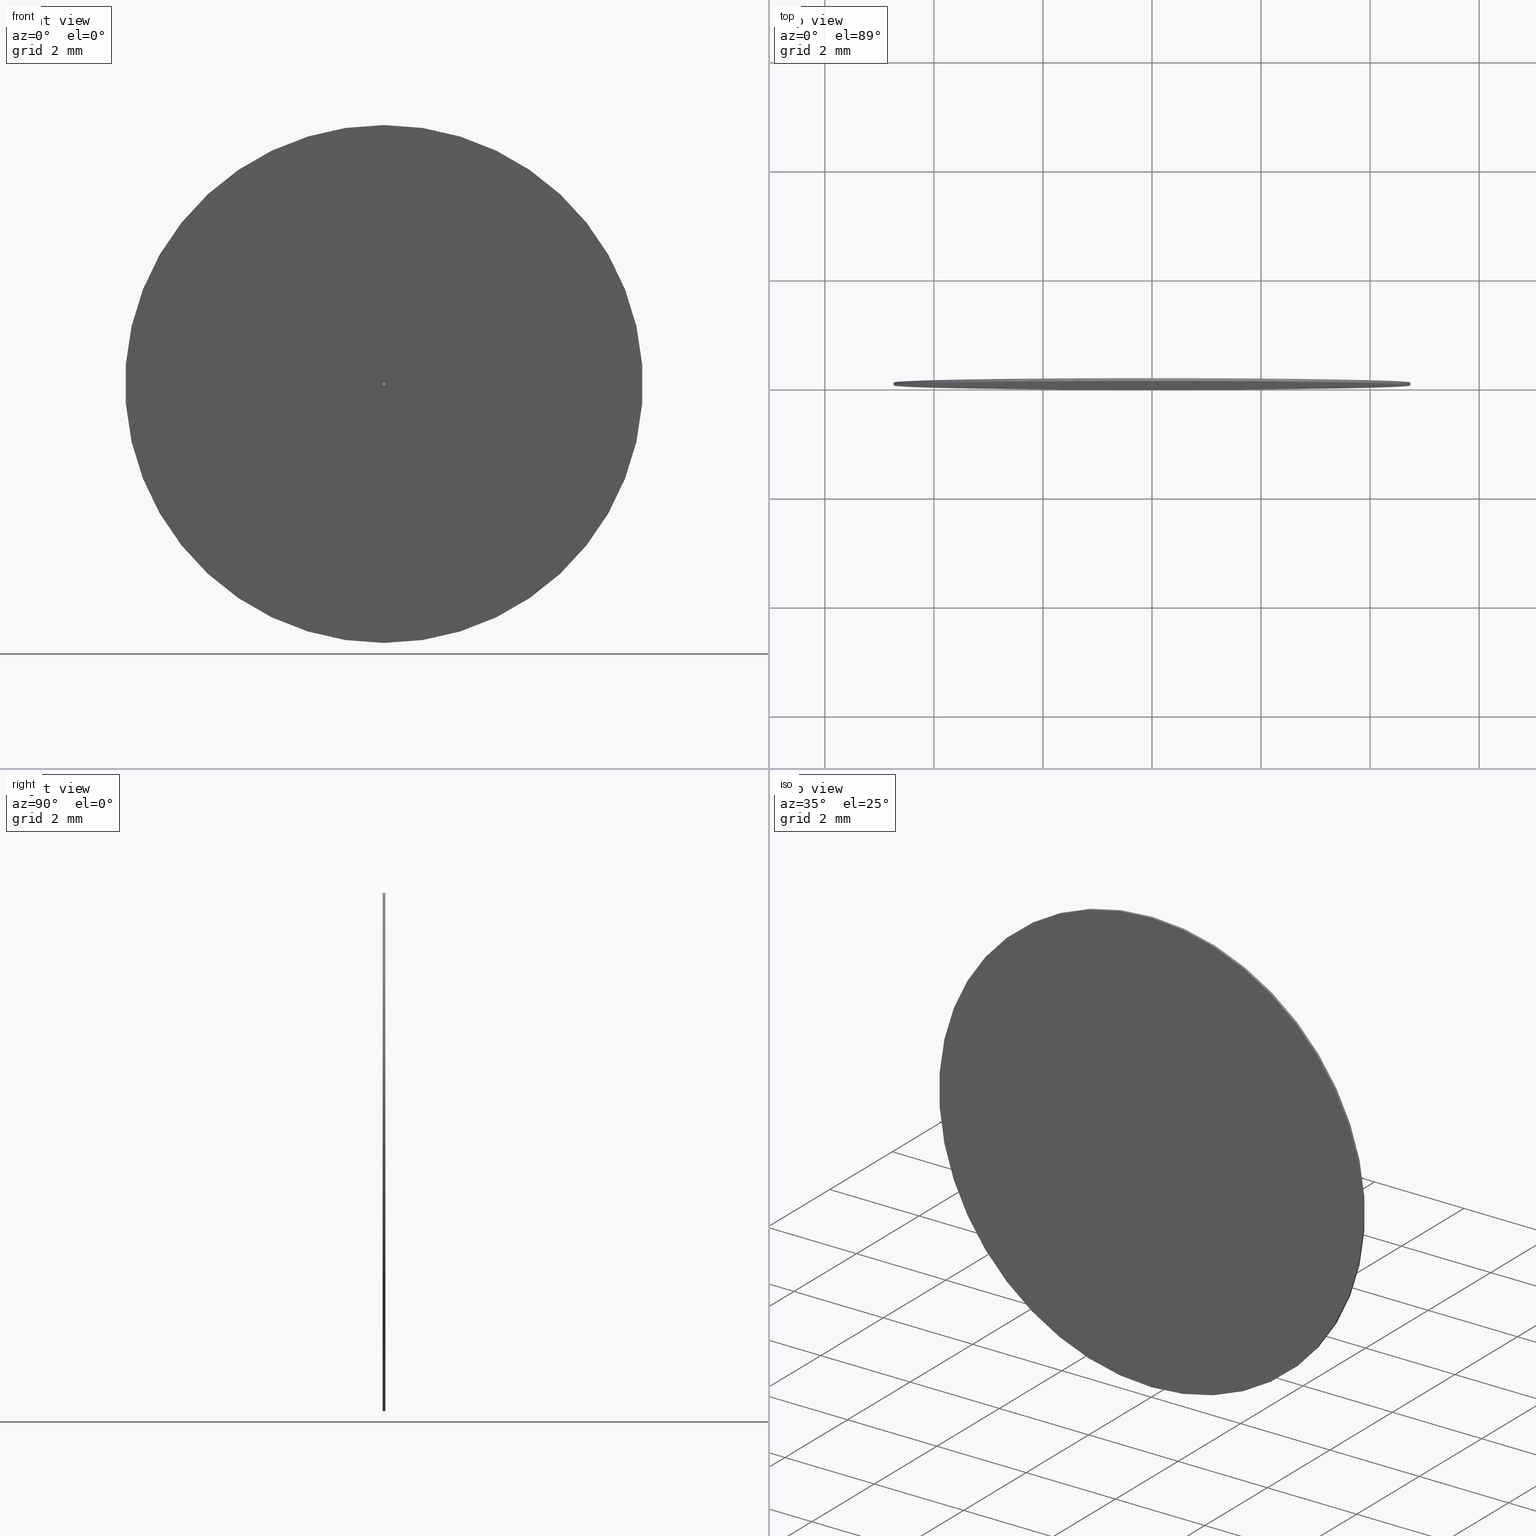
[diagram: canonical four-view strip — front | top / right | iso, engineering-drawing reading convention]
A machine part, canonical four-view strip (front | top / right | iso — engineering-drawing reading convention). The complete STEP part file that produces these views, byte-faithful:
ISO-10303-21;
HEADER;
FILE_DESCRIPTION (( 'STEP AP203' ),
    '1' );
FILE_NAME ('1.5.3.5-ZXO-9.5-25.STEP',
    '2024-05-31T06:06:10',
    ( '' ),
    ( '' ),
    'SwSTEP 2.0',
    'SolidWorks 2021',
    '' );
FILE_SCHEMA (( 'CONFIG_CONTROL_DESIGN' ));
ENDSEC;

DATA;
#1 = SECURITY_CLASSIFICATION ( '', '', #32 ) ;
#2 = ORIENTED_EDGE ( 'NONE', *, *, #8, .F. ) ;
#3 = CARTESIAN_POINT ( 'NONE',  ( 0.000000000000000000, 0.000000000000000000, 0.000000000000000000 ) ) ;
#4 = DIRECTION ( 'NONE',  ( 0.000000000000000000, 1.000000000000000000, 0.000000000000000000 ) ) ;
#5 = DIRECTION ( 'NONE',  ( 0.000000000000000000, 0.000000000000000000, 1.000000000000000000 ) ) ;
#6 = LOCAL_TIME ( 14, 6, 10.00000000000000000, #211 ) ;
#7 = VECTOR ( 'NONE', #246, 1000.000000000000000 ) ;
#8 = EDGE_CURVE ( 'NONE', #30, #205, #26, .T. ) ;
#9 = DIRECTION ( 'NONE',  ( 0.000000000000000000, 0.000000000000000000, 1.000000000000000000 ) ) ;
#10 = CC_DESIGN_APPROVAL ( #187, ( #142 ) ) ;
#11 = DIRECTION ( 'NONE',  ( 0.000000000000000000, 1.000000000000000000, 0.000000000000000000 ) ) ;
#12 = ADVANCED_FACE ( 'NONE', ( #21, #224 ), #35, .F. ) ;
#13 = AXIS2_PLACEMENT_3D ( 'NONE', #214, #232, #79 ) ;
#14 = ORIENTED_EDGE ( 'NONE', *, *, #141, .F. ) ;
#15 = ORIENTED_EDGE ( 'NONE', *, *, #162, .F. ) ;
#16 = EDGE_LOOP ( 'NONE', ( #170, #100, #221, #193 ) ) ;
#17 = COORDINATED_UNIVERSAL_TIME_OFFSET ( 8, 0, .AHEAD. ) ;
#18 = LOCAL_TIME ( 14, 6, 10.00000000000000000, #34 ) ;
#19 = DIRECTION ( 'NONE',  ( 0.000000000000000000, 1.000000000000000000, 0.000000000000000000 ) ) ;
#20 = CALENDAR_DATE ( 2024, 31, 5 ) ;
#21 = FACE_OUTER_BOUND ( 'NONE', #223, .T. ) ;
#22 = CALENDAR_DATE ( 2024, 31, 5 ) ;
#23 = ORIENTED_EDGE ( 'NONE', *, *, #172, .T. ) ;
#24 = AXIS2_PLACEMENT_3D ( 'NONE', #146, #78, #184 ) ;
#25 = CC_DESIGN_PERSON_AND_ORGANIZATION_ASSIGNMENT ( #132, #71, ( #138 ) ) ;
#26 = CIRCLE ( 'NONE', #240, 4.750000000000000000 ) ;
#27 = EDGE_LOOP ( 'NONE', ( #113, #124 ) ) ;
#28 = ORIENTED_EDGE ( 'NONE', *, *, #141, .T. ) ;
#29 = DIRECTION ( 'NONE',  ( 0.000000000000000000, 1.000000000000000000, 0.000000000000000000 ) ) ;
#30 = VERTEX_POINT ( 'NONE', #51 ) ;
#31 = ADVANCED_FACE ( 'NONE', ( #245 ), #197, .F. ) ;
#32 = SECURITY_CLASSIFICATION_LEVEL ( 'unclassified' ) ;
#33 = CARTESIAN_POINT ( 'NONE',  ( 1.530808498934191586E-18, 0.05000000000000000278, 0.01250000000000000069 ) ) ;
#34 = COORDINATED_UNIVERSAL_TIME_OFFSET ( 8, 0, .AHEAD. ) ;
#35 = PLANE ( 'NONE',  #144 ) ;
#36 = PERSON_AND_ORGANIZATION ( #109, #188 ) ;
#37 = EDGE_CURVE ( 'NONE', #41, #43, #104, .T. ) ;
#38 = PERSON_AND_ORGANIZATION ( #109, #188 ) ;
#39 = DIRECTION ( 'NONE',  ( 0.000000000000000000, 0.000000000000000000, -1.000000000000000000 ) ) ;
#40 = PRODUCT_DEFINITION_SHAPE ( 'NONE', 'NONE',  #111 ) ;
#41 = VERTEX_POINT ( 'NONE', #66 ) ;
#42 = APPROVAL_PERSON_ORGANIZATION ( #199, #137, #177 ) ;
#43 = VERTEX_POINT ( 'NONE', #128 ) ;
#44 = EDGE_CURVE ( 'NONE', #203, #62, #243, .T. ) ;
#45 = CYLINDRICAL_SURFACE ( 'NONE', #201, 4.750000000000000000 ) ;
#46 = DIRECTION ( 'NONE',  ( 0.000000000000000000, 0.000000000000000000, 1.000000000000000000 ) ) ;
#47 = FACE_OUTER_BOUND ( 'NONE', #140, .T. ) ;
#48 = MECHANICAL_CONTEXT ( 'NONE', #81, 'mechanical' ) ;
#49 = DIRECTION ( 'NONE',  ( 0.000000000000000000, -0.000000000000000000, 1.000000000000000000 ) ) ;
#50 = SHAPE_DEFINITION_REPRESENTATION ( #40, #235 ) ;
#51 = CARTESIAN_POINT ( 'NONE',  ( 5.817072295949927426E-16, 0.05000000000000000278, 4.750000000000000000 ) ) ;
#52 = DATE_TIME_ROLE ( 'creation_date' ) ;
#53 = CARTESIAN_POINT ( 'NONE',  ( 0.000000000000000000, 0.05000000000000000278, -0.01250000000000000069 ) ) ;
#54 = LOCAL_TIME ( 14, 6, 10.00000000000000000, #148 ) ;
#55 = CC_DESIGN_PERSON_AND_ORGANIZATION_ASSIGNMENT ( #115, #108, ( #1 ) ) ;
#56 = CARTESIAN_POINT ( 'NONE',  ( 0.000000000000000000, 0.000000000000000000, 0.000000000000000000 ) ) ;
#57 = EDGE_CURVE ( 'NONE', #41, #203, #98, .T. ) ;
#58 = ORIENTED_EDGE ( 'NONE', *, *, #239, .T. ) ;
#59 = CIRCLE ( 'NONE', #83, 4.750000000000000000 ) ;
#60 = VECTOR ( 'NONE', #110, 1000.000000000000000 ) ;
#61 = CC_DESIGN_DATE_AND_TIME_ASSIGNMENT ( #153, #52, ( #111 ) ) ;
#62 = VERTEX_POINT ( 'NONE', #126 ) ;
#63 = DIRECTION ( 'NONE',  ( 0.000000000000000000, 0.000000000000000000, 1.000000000000000000 ) ) ;
#64 = AXIS2_PLACEMENT_3D ( 'NONE', #206, #178, #63 ) ;
#65 = APPROVAL_DATE_TIME ( #114, #137 ) ;
#66 = CARTESIAN_POINT ( 'NONE',  ( 1.530808498934191586E-18, 0.05000000000000000278, 0.01250000000000000069 ) ) ;
#67 = DATE_AND_TIME ( #244, #180 ) ;
#68 = CARTESIAN_POINT ( 'NONE',  ( 0.000000000000000000, 0.05000000000000000278, 0.000000000000000000 ) ) ;
#69 = APPLICATION_PROTOCOL_DEFINITION ( 'international standard', 'config_control_design', 1994, #81 ) ;
#70 = DIRECTION ( 'NONE',  ( 0.000000000000000000, 0.000000000000000000, 1.000000000000000000 ) ) ;
#71 = PERSON_AND_ORGANIZATION_ROLE ( 'design_owner' ) ;
#72 = ORIENTED_EDGE ( 'NONE', *, *, #37, .T. ) ;
#73 = ADVANCED_FACE ( 'NONE', ( #135, #190 ), #85, .T. ) ;
#74 =( NAMED_UNIT ( * ) SI_UNIT ( $, .STERADIAN. ) SOLID_ANGLE_UNIT ( ) );
#75 = CYLINDRICAL_SURFACE ( 'NONE', #131, 0.01250000000000000069 ) ;
#76 = CC_DESIGN_PERSON_AND_ORGANIZATION_ASSIGNMENT ( #127, #169, ( #111 ) ) ;
#77 = AXIS2_PLACEMENT_3D ( 'NONE', #194, #46, #129 ) ;
#78 = DIRECTION ( 'NONE',  ( 0.000000000000000000, 1.000000000000000000, 0.000000000000000000 ) ) ;
#79 = DIRECTION ( 'NONE',  ( 0.000000000000000000, 0.000000000000000000, 1.000000000000000000 ) ) ;
#80 = CARTESIAN_POINT ( 'NONE',  ( 0.000000000000000000, 0.05000000000000000278, -4.750000000000000000 ) ) ;
#81 = APPLICATION_CONTEXT ( 'configuration controlled 3d designs of mechanical parts and assemblies' ) ;
#82 = EDGE_LOOP ( 'NONE', ( #133, #72, #15, #167 ) ) ;
#83 = AXIS2_PLACEMENT_3D ( 'NONE', #3, #117, #5 ) ;
#84 = ORIENTED_EDGE ( 'NONE', *, *, #239, .F. ) ;
#85 = PLANE ( 'NONE',  #95 ) ;
#86 = COORDINATED_UNIVERSAL_TIME_OFFSET ( 8, 0, .AHEAD. ) ;
#87 = ORIENTED_EDGE ( 'NONE', *, *, #162, .T. ) ;
#88 = APPROVAL_PERSON_ORGANIZATION ( #105, #121, #192 ) ;
#89 = PERSON_AND_ORGANIZATION_ROLE ( 'creator' ) ;
#90 = DIRECTION ( 'NONE',  ( 0.000000000000000000, -0.000000000000000000, 1.000000000000000000 ) ) ;
#91 = DATE_AND_TIME ( #20, #18 ) ;
#92 = CARTESIAN_POINT ( 'NONE',  ( 0.000000000000000000, 0.05000000000000000278, 0.000000000000000000 ) ) ;
#93 = CALENDAR_DATE ( 2024, 31, 5 ) ;
#94 = DIRECTION ( 'NONE',  ( 0.000000000000000000, 0.000000000000000000, -1.000000000000000000 ) ) ;
#95 = AXIS2_PLACEMENT_3D ( 'NONE', #103, #29, #90 ) ;
#96 = CIRCLE ( 'NONE', #13, 4.750000000000000000 ) ;
#97 = CARTESIAN_POINT ( 'NONE',  ( 0.000000000000000000, 0.05000000000000000278, 0.000000000000000000 ) ) ;
#98 = CIRCLE ( 'NONE', #64, 0.01250000000000000069 ) ;
#99 = CC_DESIGN_PERSON_AND_ORGANIZATION_ASSIGNMENT ( #36, #229, ( #142 ) ) ;
#100 = ORIENTED_EDGE ( 'NONE', *, *, #57, .T. ) ;
#101 =( NAMED_UNIT ( * ) PLANE_ANGLE_UNIT ( ) SI_UNIT ( $, .RADIAN. ) );
#102 = ADVANCED_FACE ( 'NONE', ( #147 ), #45, .T. ) ;
#103 = CARTESIAN_POINT ( 'NONE',  ( 0.000000000000000000, 0.05000000000000000278, 0.000000000000000000 ) ) ;
#104 = LINE ( 'NONE', #33, #7 ) ;
#105 = PERSON_AND_ORGANIZATION ( #109, #188 ) ;
#106 = CARTESIAN_POINT ( 'NONE',  ( 0.000000000000000000, 0.05000000000000000278, 0.000000000000000000 ) ) ;
#107 = VECTOR ( 'NONE', #158, 1000.000000000000000 ) ;
#108 = PERSON_AND_ORGANIZATION_ROLE ( 'classification_officer' ) ;
#109 = PERSON ( 'δָ��', 'δָ��', 'δָ��', ('δָ��'), ('δָ��'), ('δָ��') ) ;
#110 = DIRECTION ( 'NONE',  ( -0.000000000000000000, -1.000000000000000000, -0.000000000000000000 ) ) ;
#111 = PRODUCT_DEFINITION ( 'δ֪', '', #142, #118 ) ;
#112 = APPROVAL_STATUS ( 'not_yet_approved' ) ;
#113 = ORIENTED_EDGE ( 'NONE', *, *, #220, .F. ) ;
#114 = DATE_AND_TIME ( #196, #116 ) ;
#115 = PERSON_AND_ORGANIZATION ( #109, #188 ) ;
#116 = LOCAL_TIME ( 14, 6, 10.00000000000000000, #86 ) ;
#117 = DIRECTION ( 'NONE',  ( 0.000000000000000000, 1.000000000000000000, 0.000000000000000000 ) ) ;
#118 = DESIGN_CONTEXT ( 'detailed design', #143, 'design' ) ;
#119 = DIRECTION ( 'NONE',  ( 0.000000000000000000, 0.000000000000000000, 1.000000000000000000 ) ) ;
#120 = AXIS2_PLACEMENT_3D ( 'NONE', #92, #202, #161 ) ;
#121 = APPROVAL ( #179, 'δָ��' ) ;
#122 = ORIENTED_EDGE ( 'NONE', *, *, #204, .T. ) ;
#123 =( LENGTH_UNIT ( ) NAMED_UNIT ( * ) SI_UNIT ( .MILLI., .METRE. ) );
#124 = ORIENTED_EDGE ( 'NONE', *, *, #57, .F. ) ;
#125 = CIRCLE ( 'NONE', #219, 0.01250000000000000069 ) ;
#126 = CARTESIAN_POINT ( 'NONE',  ( 0.000000000000000000, 0.000000000000000000, -0.01250000000000000069 ) ) ;
#127 = PERSON_AND_ORGANIZATION ( #109, #188 ) ;
#128 = CARTESIAN_POINT ( 'NONE',  ( 1.530808498934191586E-18, 0.000000000000000000, 0.01250000000000000069 ) ) ;
#129 = DIRECTION ( 'NONE',  ( 1.000000000000000000, 0.000000000000000000, 0.000000000000000000 ) ) ;
#130 = CYLINDRICAL_SURFACE ( 'NONE', #120, 4.750000000000000000 ) ;
#131 = AXIS2_PLACEMENT_3D ( 'NONE', #97, #200, #39 ) ;
#132 = PERSON_AND_ORGANIZATION ( #109, #188 ) ;
#133 = ORIENTED_EDGE ( 'NONE', *, *, #220, .T. ) ;
#134 = UNCERTAINTY_MEASURE_WITH_UNIT (LENGTH_MEASURE( 1.000000000000000082E-05 ), #123, 'distance_accuracy_value', 'NONE');
#135 = FACE_OUTER_BOUND ( 'NONE', #227, .T. ) ;
#136 = PERSON_AND_ORGANIZATION ( #109, #188 ) ;
#137 = APPROVAL ( #112, 'δָ��' ) ;
#138 = PRODUCT ( '1.5.3.5-ZXO-9.5-25', '1.5.3.5-ZXO-9.5-25', '', ( #48 ) ) ;
#139 = CC_DESIGN_APPROVAL ( #137, ( #1 ) ) ;
#140 = EDGE_LOOP ( 'NONE', ( #2, #189, #23, #84 ) ) ;
#141 = EDGE_CURVE ( 'NONE', #205, #30, #236, .T. ) ;
#142 = PRODUCT_DEFINITION_FORMATION_WITH_SPECIFIED_SOURCE ( '�κ�', '', #138, .NOT_KNOWN. ) ;
#143 = APPLICATION_CONTEXT ( 'configuration controlled 3d designs of mechanical parts and assemblies' ) ;
#144 = AXIS2_PLACEMENT_3D ( 'NONE', #230, #19, #49 ) ;
#145 = ORIENTED_EDGE ( 'NONE', *, *, #204, .F. ) ;
#146 = CARTESIAN_POINT ( 'NONE',  ( 0.000000000000000000, 0.05000000000000000278, 0.000000000000000000 ) ) ;
#147 = FACE_OUTER_BOUND ( 'NONE', #212, .T. ) ;
#148 = COORDINATED_UNIVERSAL_TIME_OFFSET ( 8, 0, .AHEAD. ) ;
#149 = DIRECTION ( 'NONE',  ( 0.000000000000000000, 1.000000000000000000, 0.000000000000000000 ) ) ;
#150 = APPROVAL_STATUS ( 'not_yet_approved' ) ;
#151 = CARTESIAN_POINT ( 'NONE',  ( 0.000000000000000000, 0.05000000000000000278, -0.01250000000000000069 ) ) ;
#152 = CIRCLE ( 'NONE', #198, 0.01250000000000000069 ) ;
#153 = DATE_AND_TIME ( #22, #6 ) ;
#154 = DIRECTION ( 'NONE',  ( 0.000000000000000000, 1.000000000000000000, 0.000000000000000000 ) ) ;
#155 = CARTESIAN_POINT ( 'NONE',  ( 0.000000000000000000, 0.000000000000000000, -4.750000000000000000 ) ) ;
#156 = FACE_OUTER_BOUND ( 'NONE', #16, .T. ) ;
#157 = CC_DESIGN_APPROVAL ( #121, ( #111 ) ) ;
#158 = DIRECTION ( 'NONE',  ( -0.000000000000000000, -1.000000000000000000, -0.000000000000000000 ) ) ;
#159 = ADVANCED_FACE ( 'NONE', ( #47 ), #130, .T. ) ;
#160 = CARTESIAN_POINT ( 'NONE',  ( 0.000000000000000000, 0.000000000000000000, 0.000000000000000000 ) ) ;
#161 = DIRECTION ( 'NONE',  ( 0.000000000000000000, 0.000000000000000000, -1.000000000000000000 ) ) ;
#162 = EDGE_CURVE ( 'NONE', #62, #43, #125, .T. ) ;
#163 = LINE ( 'NONE', #238, #107 ) ;
#164 = VECTOR ( 'NONE', #218, 1000.000000000000000 ) ;
#165 = CLOSED_SHELL ( 'NONE', ( #31, #159, #73, #12, #102, #166 ) ) ;
#166 = ADVANCED_FACE ( 'NONE', ( #156 ), #75, .F. ) ;
#167 = ORIENTED_EDGE ( 'NONE', *, *, #44, .F. ) ;
#168 = ORIENTED_EDGE ( 'NONE', *, *, #172, .F. ) ;
#169 = PERSON_AND_ORGANIZATION_ROLE ( 'creator' ) ;
#170 = ORIENTED_EDGE ( 'NONE', *, *, #37, .F. ) ;
#171 = CIRCLE ( 'NONE', #24, 0.01250000000000000069 ) ;
#172 = EDGE_CURVE ( 'NONE', #207, #191, #59, .T. ) ;
#173 = APPROVAL_DATE_TIME ( #67, #121 ) ;
#174 = DIRECTION ( 'NONE',  ( 0.000000000000000000, 0.000000000000000000, -1.000000000000000000 ) ) ;
#175 = DATE_TIME_ROLE ( 'classification_date' ) ;
#176 = CARTESIAN_POINT ( 'NONE',  ( 0.000000000000000000, 0.05000000000000000278, 0.000000000000000000 ) ) ;
#177 = APPROVAL_ROLE ( '' ) ;
#178 = DIRECTION ( 'NONE',  ( 0.000000000000000000, 1.000000000000000000, 0.000000000000000000 ) ) ;
#179 = APPROVAL_STATUS ( 'not_yet_approved' ) ;
#180 = LOCAL_TIME ( 14, 6, 10.00000000000000000, #17 ) ;
#181 = CC_DESIGN_DATE_AND_TIME_ASSIGNMENT ( #91, #175, ( #1 ) ) ;
#182 = AXIS2_PLACEMENT_3D ( 'NONE', #210, #248, #94 ) ;
#183 = CARTESIAN_POINT ( 'NONE',  ( 0.000000000000000000, 0.05000000000000000278, -4.750000000000000000 ) ) ;
#184 = DIRECTION ( 'NONE',  ( 0.000000000000000000, 0.000000000000000000, 1.000000000000000000 ) ) ;
#185 = EDGE_LOOP ( 'NONE', ( #87, #186 ) ) ;
#186 = ORIENTED_EDGE ( 'NONE', *, *, #228, .T. ) ;
#187 = APPROVAL ( #150, 'δָ��' ) ;
#188 = ORGANIZATION ( 'δָ��', 'δָ��', '' ) ;
#189 = ORIENTED_EDGE ( 'NONE', *, *, #242, .T. ) ;
#190 = FACE_BOUND ( 'NONE', #27, .T. ) ;
#191 = VERTEX_POINT ( 'NONE', #155 ) ;
#192 = APPROVAL_ROLE ( '' ) ;
#193 = ORIENTED_EDGE ( 'NONE', *, *, #228, .F. ) ;
#194 = CARTESIAN_POINT ( 'NONE',  ( 0.000000000000000000, 0.000000000000000000, 0.000000000000000000 ) ) ;
#195 = DIRECTION ( 'NONE',  ( -0.000000000000000000, -1.000000000000000000, -0.000000000000000000 ) ) ;
#196 = CALENDAR_DATE ( 2024, 31, 5 ) ;
#197 = CYLINDRICAL_SURFACE ( 'NONE', #182, 0.01250000000000000069 ) ;
#198 = AXIS2_PLACEMENT_3D ( 'NONE', #160, #11, #9 ) ;
#199 = PERSON_AND_ORGANIZATION ( #109, #188 ) ;
#200 = DIRECTION ( 'NONE',  ( -0.000000000000000000, -1.000000000000000000, -0.000000000000000000 ) ) ;
#201 = AXIS2_PLACEMENT_3D ( 'NONE', #106, #195, #174 ) ;
#202 = DIRECTION ( 'NONE',  ( -0.000000000000000000, -1.000000000000000000, -0.000000000000000000 ) ) ;
#203 = VERTEX_POINT ( 'NONE', #53 ) ;
#204 = EDGE_CURVE ( 'NONE', #191, #207, #96, .T. ) ;
#205 = VERTEX_POINT ( 'NONE', #183 ) ;
#206 = CARTESIAN_POINT ( 'NONE',  ( 0.000000000000000000, 0.05000000000000000278, 0.000000000000000000 ) ) ;
#207 = VERTEX_POINT ( 'NONE', #249 ) ;
#208 = DATE_AND_TIME ( #93, #54 ) ;
#209 =( GEOMETRIC_REPRESENTATION_CONTEXT ( 3 ) GLOBAL_UNCERTAINTY_ASSIGNED_CONTEXT ( ( #134 ) ) GLOBAL_UNIT_ASSIGNED_CONTEXT ( ( #123, #101, #74 ) ) REPRESENTATION_CONTEXT ( 'NONE', 'WORKASPACE' ) );
#210 = CARTESIAN_POINT ( 'NONE',  ( 0.000000000000000000, 0.05000000000000000278, 0.000000000000000000 ) ) ;
#211 = COORDINATED_UNIVERSAL_TIME_OFFSET ( 8, 0, .AHEAD. ) ;
#212 = EDGE_LOOP ( 'NONE', ( #241, #14, #58, #122 ) ) ;
#213 = PRODUCT_RELATED_PRODUCT_CATEGORY ( 'detail', '', ( #138 ) ) ;
#214 = CARTESIAN_POINT ( 'NONE',  ( 0.000000000000000000, 0.000000000000000000, 0.000000000000000000 ) ) ;
#215 = APPROVAL_ROLE ( '' ) ;
#216 = AXIS2_PLACEMENT_3D ( 'NONE', #68, #149, #226 ) ;
#217 = APPROVAL_PERSON_ORGANIZATION ( #136, #187, #215 ) ;
#218 = DIRECTION ( 'NONE',  ( -0.000000000000000000, -1.000000000000000000, -0.000000000000000000 ) ) ;
#219 = AXIS2_PLACEMENT_3D ( 'NONE', #56, #4, #119 ) ;
#220 = EDGE_CURVE ( 'NONE', #203, #41, #171, .T. ) ;
#221 = ORIENTED_EDGE ( 'NONE', *, *, #44, .T. ) ;
#222 = CC_DESIGN_PERSON_AND_ORGANIZATION_ASSIGNMENT ( #38, #89, ( #142 ) ) ;
#223 = EDGE_LOOP ( 'NONE', ( #145, #168 ) ) ;
#224 = FACE_BOUND ( 'NONE', #185, .T. ) ;
#225 = APPROVAL_DATE_TIME ( #208, #187 ) ;
#226 = DIRECTION ( 'NONE',  ( 0.000000000000000000, 0.000000000000000000, 1.000000000000000000 ) ) ;
#227 = EDGE_LOOP ( 'NONE', ( #28, #237 ) ) ;
#228 = EDGE_CURVE ( 'NONE', #43, #62, #152, .T. ) ;
#229 = PERSON_AND_ORGANIZATION_ROLE ( 'design_supplier' ) ;
#230 = CARTESIAN_POINT ( 'NONE',  ( 0.000000000000000000, 0.000000000000000000, 0.000000000000000000 ) ) ;
#231 = APPLICATION_PROTOCOL_DEFINITION ( 'international standard', 'config_control_design', 1994, #143 ) ;
#232 = DIRECTION ( 'NONE',  ( 0.000000000000000000, 1.000000000000000000, 0.000000000000000000 ) ) ;
#233 = CC_DESIGN_SECURITY_CLASSIFICATION ( #1, ( #142 ) ) ;
#234 = LINE ( 'NONE', #80, #164 ) ;
#235 = ADVANCED_BREP_SHAPE_REPRESENTATION ( '1.5.3.5-ZXO-9.5-25', ( #247, #77 ), #209 ) ;
#236 = CIRCLE ( 'NONE', #216, 4.750000000000000000 ) ;
#237 = ORIENTED_EDGE ( 'NONE', *, *, #8, .T. ) ;
#238 = CARTESIAN_POINT ( 'NONE',  ( 5.817072295949927426E-16, 0.05000000000000000278, 4.750000000000000000 ) ) ;
#239 = EDGE_CURVE ( 'NONE', #205, #191, #234, .T. ) ;
#240 = AXIS2_PLACEMENT_3D ( 'NONE', #176, #154, #70 ) ;
#241 = ORIENTED_EDGE ( 'NONE', *, *, #242, .F. ) ;
#242 = EDGE_CURVE ( 'NONE', #30, #207, #163, .T. ) ;
#243 = LINE ( 'NONE', #151, #60 ) ;
#244 = CALENDAR_DATE ( 2024, 31, 5 ) ;
#245 = FACE_OUTER_BOUND ( 'NONE', #82, .T. ) ;
#246 = DIRECTION ( 'NONE',  ( -0.000000000000000000, -1.000000000000000000, -0.000000000000000000 ) ) ;
#247 = MANIFOLD_SOLID_BREP ( '͹̨-����1', #165 ) ;
#248 = DIRECTION ( 'NONE',  ( -0.000000000000000000, -1.000000000000000000, -0.000000000000000000 ) ) ;
#249 = CARTESIAN_POINT ( 'NONE',  ( 5.817072295949927426E-16, 0.000000000000000000, 4.750000000000000000 ) ) ;
ENDSEC;
END-ISO-10303-21;
